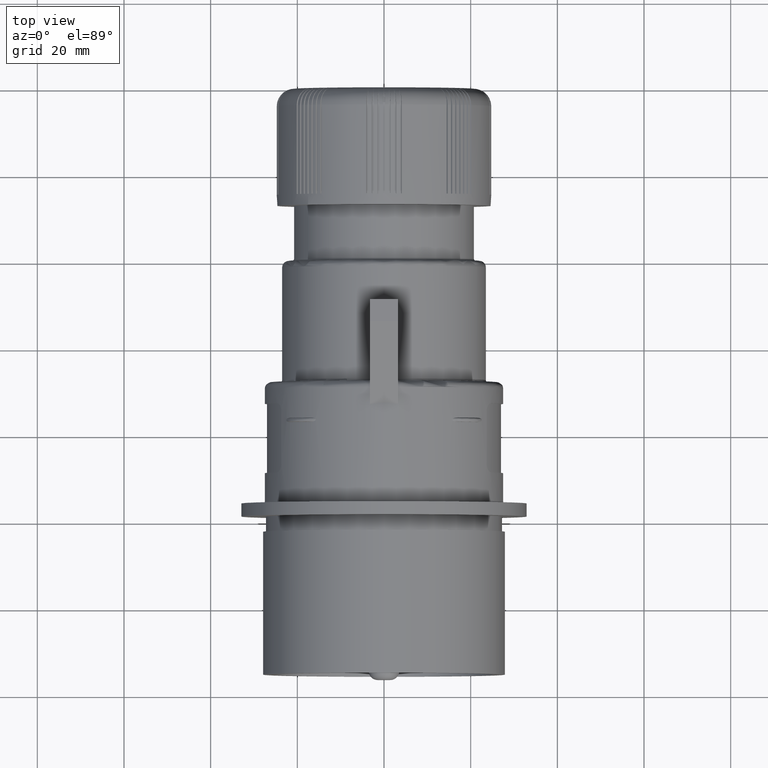
[diagram: clean part render]
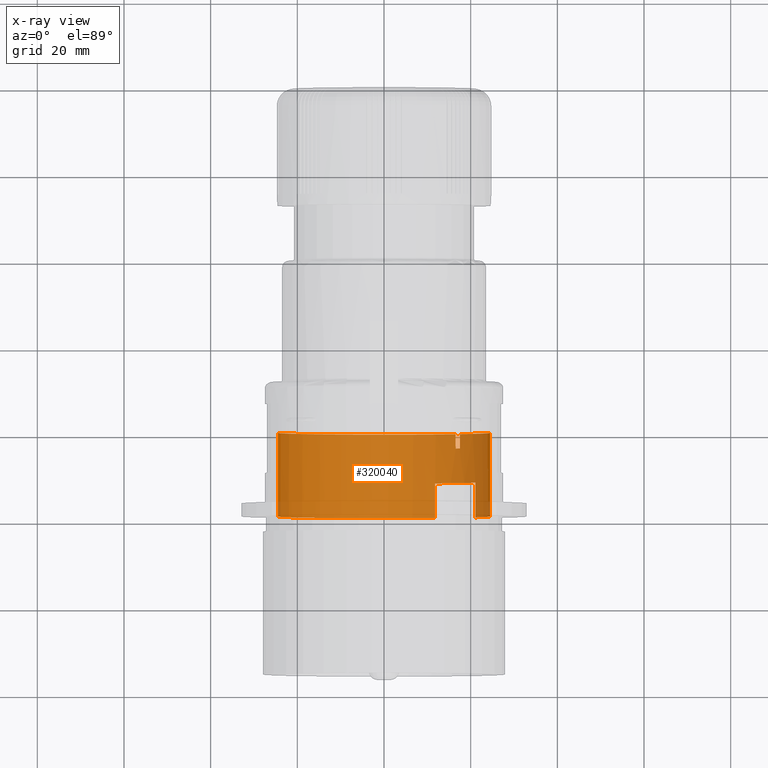
[diagram: x-ray — body ghosted, one internal face saturated and labeled with its STEP entity id]
A machine part, top view, then the same camera in x-ray: the body is ghosted and one INTERNAL B-rep face — a face not visible from any outside direction — is saturated and labeled: STEP entity #320040.
In plain terms, the highlighted cylindrical surface (partial cylindrical patch) has radius 24.5 mm, axis along (0, -1, 0).
Its self-contained STEP definition (entity closure, byte-faithful):
#75840=CARTESIAN_POINT('',(-182.519289764259,-62.9277466954265,
-17.1660936049425));
#75850=VERTEX_POINT('',#75840);
#76480=CARTESIAN_POINT('',(-183.454431504699,-62.9277466954275,
-18.0691494865396));
#76490=VERTEX_POINT('',#76480);
#76520=CARTESIAN_POINT('',(-200.000000000013,-62.9277466954416,
-1.05442910116305E-12));
#76530=DIRECTION('',(9.47706303520742E-13,-1.,8.2888230632722E-14));
#76540=DIRECTION('',(1.,9.47706303520742E-13,2.75506488473434E-40));
#76550=AXIS2_PLACEMENT_3D('',#76520,#76530,#76540);
#76560=CIRCLE('',#76550,24.5);
#76570=EDGE_CURVE('',#76490,#75850,#76560,.T.);
#80830=CARTESIAN_POINT('',(-182.499116447442,-59.6277466615388,
-17.1455263809342));
#80840=VERTEX_POINT('',#80830);
#80890=CARTESIAN_POINT('',(-182.519289764259,-62.9277466954416,
-17.1660936049425));
#80900=CARTESIAN_POINT('',(-182.518448718956,-62.7902466938298,
-17.165237145134));
#80910=CARTESIAN_POINT('',(-182.517607734955,-62.6527466922426,
-17.1643806218453));
#80920=CARTESIAN_POINT('',(-182.516766812258,-62.5152466906798,
-17.1635240350755));
#80930=CARTESIAN_POINT('',(-182.51592588956,-62.3777466891171,
-17.1626674483056));
#80940=CARTESIAN_POINT('',(-182.515085028166,-62.240246687579,
-17.1618107980547));
#80950=CARTESIAN_POINT('',(-182.514244228076,-62.1027466860657,
-17.160954084322));
#80960=CARTESIAN_POINT('',(-182.512562627896,-61.827746683039,
-17.1592406568566));
#80970=CARTESIAN_POINT('',(-182.510881272932,-61.5527466801117,
-17.157526975464));
#80980=CARTESIAN_POINT('',(-182.509200163189,-61.2777466772845,
-17.155813040138));
#80990=CARTESIAN_POINT('',(-182.507519053447,-61.0027466744575,
-17.1540991048121));
#81000=CARTESIAN_POINT('',(-182.505838188926,-60.7277466717309,
-17.1523849155529));
#81010=CARTESIAN_POINT('',(-182.504157569633,-60.4527466691062,
-17.1506704723543));
#81020=CARTESIAN_POINT('',(-182.50247695034,-60.1777466664815,
-17.1489560291557));
#81030=CARTESIAN_POINT('',(-182.500796576274,-59.9027466639585,
-17.1472413320177));
#81040=CARTESIAN_POINT('',(-182.499116447442,-59.6277466615388,
-17.1455263809342));
#81050=B_SPLINE_CURVE_WITH_KNOTS('',3,(#80890,#80900,#80910,#80920,
#80930,#80940,#80950,#80960,#80970,#80980,#80990,#81000,#81010,#81020,
#81030,#81040),.UNSPECIFIED.,.F.,.F.,(4,3,3,3,3,4),(0.,0.412490507254533
,0.825003959169601,1.65004399054009,2.47507818218341,3.30010631947474),
.UNSPECIFIED.);
#81060=EDGE_CURVE('',#75850,#80840,#81050,.T.);
#94170=CARTESIAN_POINT('',(-183.475690238313,-59.6277466615398,
-18.0885927285501));
#94180=CARTESIAN_POINT('',(-183.473917696281,-59.9027466639594,
-18.086973474137));
#94190=CARTESIAN_POINT('',(-183.472145399481,-60.1777466664823,
-18.085353965777));
#94200=CARTESIAN_POINT('',(-183.470373347908,-60.4527466691069,
-18.0837342034765));
#94210=CARTESIAN_POINT('',(-183.468601296334,-60.7277466717316,
-18.082114441176));
#94220=CARTESIAN_POINT('',(-183.466829489987,-61.0027466744581,
-18.0804944249348));
#94230=CARTESIAN_POINT('',(-183.46505792886,-61.2777466772851,
-18.0788741547591));
#94240=CARTESIAN_POINT('',(-183.463286367733,-61.552746680112,
-18.0772538845835));
#94250=CARTESIAN_POINT('',(-183.461515051827,-61.8277466830395,
-18.0756333604733));
#94260=CARTESIAN_POINT('',(-183.459743981135,-62.102746686066,
-18.0740125824347));
#94270=CARTESIAN_POINT('',(-183.457972910444,-62.3777466890925,
-18.0723918043961));
#94280=CARTESIAN_POINT('',(-183.456202084967,-62.6527466922182,
-18.0707707724291));
#94290=CARTESIAN_POINT('',(-183.454431504699,-62.9277466954416,
-18.0691494865395));
#94300=B_SPLINE_CURVE_WITH_KNOTS('',3,(#94170,#94180,#94190,#94200,
#94210,#94220,#94230,#94240,#94250,#94260,#94270,#94280,#94290),
.UNSPECIFIED.,.F.,.F.,(4,3,3,3,4),(0.,0.825014240608559,1.65002063722441
,2.47504677077031,3.30005073082116),.UNSPECIFIED.);
#94310=CARTESIAN_POINT('',(-183.475690238313,-59.6277466615398,
-18.0885927285501));
#94320=VERTEX_POINT('',#94310);
#94330=EDGE_CURVE('',#94320,#76490,#94300,.T.);
#99840=CARTESIAN_POINT('',(-200.000000000016,-59.627746661554,
-1.32871491587139E-12));
#99850=DIRECTION('',(9.47706303520742E-13,-1.,8.2888230632722E-14));
#99860=DIRECTION('',(1.,9.47706303520742E-13,2.75506488473434E-40));
#99870=AXIS2_PLACEMENT_3D('',#99840,#99850,#99860);
#99880=CIRCLE('',#99870,24.5);
#99890=CARTESIAN_POINT('',(-224.500000000015,-59.6277466615772,
-1.32495988040201E-12));
#99900=VERTEX_POINT('',#99890);
#99930=EDGE_CURVE('',#99900,#94320,#99880,.T.);
#102490=CARTESIAN_POINT('',(-175.500000000015,-59.6277466615308,
-1.32796026505992E-12));
#102500=VERTEX_POINT('',#102490);
#102510=EDGE_CURVE('',#80840,#102500,#99880,.T.);
#319400=CARTESIAN_POINT('',(-199.999999999997,-78.9277467855357,
2.71782596428238E-13));
#319410=DIRECTION('',(9.47706303520742E-13,-1.,8.2888230632722E-14));
#319420=DIRECTION('',(1.,9.47706303520742E-13,2.75506488473434E-40));
#319430=AXIS2_PLACEMENT_3D('',#319400,#319410,#319420);
#319440=CYLINDRICAL_SURFACE('',#319430,24.5);
#319450=CARTESIAN_POINT('',(-224.499999999997,-78.9277467855589,
2.74782981086149E-13));
#319460=DIRECTION('',(9.47706303520742E-13,-1.,8.2888230632722E-14));
#319470=VECTOR('',#319460,1.);
#319480=LINE('',#319450,#319470);
#319490=CARTESIAN_POINT('',(-224.499999999997,-78.9277467855589,
2.74782981086149E-13));
#319500=VERTEX_POINT('',#319490);
#319510=EDGE_CURVE('',#99900,#319500,#319480,.T.);
#319520=ORIENTED_EDGE('',*,*,#319510,.F.);
#319530=CARTESIAN_POINT('',(-199.999999999997,-78.9277467855357,
2.71782596428238E-13));
#319540=DIRECTION('',(9.47706303520742E-13,-1.,8.2888230632722E-14));
#319550=DIRECTION('',(1.,9.47706303520742E-13,2.75506488473434E-40));
#319560=AXIS2_PLACEMENT_3D('',#319530,#319540,#319550);
#319570=CIRCLE('',#319560,24.5);
#319580=CARTESIAN_POINT('',(-188.204668037197,-78.9277467855263,
-21.4737082006654));
#319590=VERTEX_POINT('',#319580);
#319600=EDGE_CURVE('',#319500,#319590,#319570,.T.);
#319610=ORIENTED_EDGE('',*,*,#319600,.F.);
#319620=CARTESIAN_POINT('',(-188.204668037197,-78.9277467855263,
-21.4737082006654));
#319630=DIRECTION('',(9.47706303520742E-13,-1.,8.2888230632722E-14));
#319640=VECTOR('',#319630,1.);
#319650=LINE('',#319620,#319640);
#319660=CARTESIAN_POINT('',(-188.204668037204,-70.9277467855263,
-21.473708200666));
#319670=VERTEX_POINT('',#319660);
#319680=EDGE_CURVE('',#319670,#319590,#319650,.T.);
#319690=ORIENTED_EDGE('',*,*,#319680,.T.);
#319700=CARTESIAN_POINT('',(-200.000000000005,-70.9277467855357,
-3.90798504668055E-13));
#319710=DIRECTION('',(9.47706303520742E-13,-1.,8.2888230632722E-14));
#319720=DIRECTION('',(1.,9.47706303520742E-13,2.75506488480097E-40));
#319730=AXIS2_PLACEMENT_3D('',#319700,#319710,#319720);
#319740=CIRCLE('',#319730,24.5);
#319750=CARTESIAN_POINT('',(-178.951024151078,-70.9277467855168,
-12.537568173744));
#319760=VERTEX_POINT('',#319750);
#319770=EDGE_CURVE('',#319670,#319760,#319740,.T.);
#319780=ORIENTED_EDGE('',*,*,#319770,.F.);
#319790=CARTESIAN_POINT('',(-178.95102415107,-78.9277467855168,
-12.5375681737433));
#319800=DIRECTION('',(9.47706303520742E-13,-1.,8.2888230632722E-14));
#319810=VECTOR('',#319800,1.);
#319820=LINE('',#319790,#319810);
#319830=CARTESIAN_POINT('',(-178.95102415107,-78.9277467855168,
-12.5375681737433));
#319840=VERTEX_POINT('',#319830);
#319850=EDGE_CURVE('',#319760,#319840,#319820,.T.);
#319860=ORIENTED_EDGE('',*,*,#319850,.F.);
#319870=CARTESIAN_POINT('',(-175.499999999997,-78.9277467855125,
2.71782596428238E-13));
#319880=VERTEX_POINT('',#319870);
#319890=EDGE_CURVE('',#319840,#319880,#319570,.T.);
#319900=ORIENTED_EDGE('',*,*,#319890,.F.);
#319910=CARTESIAN_POINT('',(-175.499999999997,-78.9277467855125,
2.71782596428238E-13));
#319920=DIRECTION('',(9.47706303520742E-13,-1.,8.2888230632722E-14));
#319930=VECTOR('',#319920,1.);
#319940=LINE('',#319910,#319930);
#319950=EDGE_CURVE('',#102500,#319880,#319940,.T.);
#319960=ORIENTED_EDGE('',*,*,#319950,.T.);
#319970=ORIENTED_EDGE('',*,*,#102510,.T.);
#319980=ORIENTED_EDGE('',*,*,#81060,.T.);
#319990=ORIENTED_EDGE('',*,*,#76570,.T.);
#320000=ORIENTED_EDGE('',*,*,#94330,.T.);
#320010=ORIENTED_EDGE('',*,*,#99930,.T.);
#320020=EDGE_LOOP('',(#320010,#320000,#319990,#319980,#319970,#319960,
#319900,#319860,#319780,#319690,#319610,#319520));
#320030=FACE_OUTER_BOUND('',#320020,.T.);
#320040=ADVANCED_FACE('',(#320030),#319440,.T.);